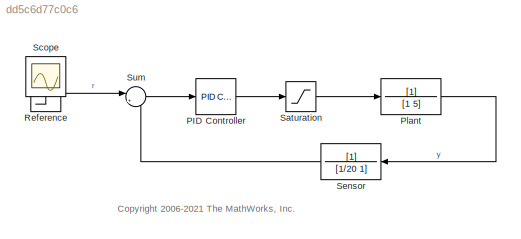
MODEL slx_dd5c6d77c0c6
KIND model
CONFIG AbsTol = auto
CONFIG EnableMultiTasking = on
CONFIG FixedStep = auto
CONFIG MaxStep = auto
CONFIG MinStep = auto
CONFIG RelTol = 1e-3
CONFIG SampleTimeConstraint = Unconstrained
CONFIG SolverName = ode45
CONFIG StartTime = 0
CONFIG StopTime = 10
WORKSPACE source: mxarray member
WORKSPACE PrivateRobust: object (value not decoded)
BLOCK [Reference] PID Controller  REF=slpidlib/PID Controller
  SourceBlock = slpidlib/PID Controller
  SourceType = PID 1dof
  Tag = PID1
BLOCK [TransferFcn] Plant
  Denominator = [1 5]
  SCDEnableBlockLinearizationSpecification = on
BLOCK [Step] Reference
  SampleTime = 0
BLOCK [Saturate] Saturation
  LowerLimit = -1
  UpperLimit = 1
BLOCK [Scope] Scope
  Floating = off
  IOType = viewer
  NumInputPorts = 1
  ScopeSpecificationString = Simulink.scopes.TimeScopeBlockCfg('CurrentConfiguration', extmgr.ConfigurationSet(extmgr.Configuration('Core','General UI',true),extmgr.Configuration('Core','Source UI',true),extmgr.Configuration('Sources','WiredSimulink',true,'DataLoggingMaxPoints','7500','DataLoggingLimitDataPoints',true,'DataLoggingSaveFormat','Array','DataLoggingDecimation','1','DataLoggingDecimateData',true),extmgr.Configurat...<+909ch>
BLOCK [TransferFcn] Sensor
  Denominator = [1/20 1]
  SCDEnableBlockLinearizationSpecification = on
BLOCK [Sum] Sum
  Inputs = |+-
ANNOTATION (root): <copyright redacted>
LINE PID Controller:1 -> Saturation:1
LINE Plant:1 -> Sensor:1
LINE Reference:1 -> Sum:1
LINE Saturation:1 -> Plant:1
LINE Sensor:1 -> Sum:2
LINE Sum:1 -> PID Controller:1
